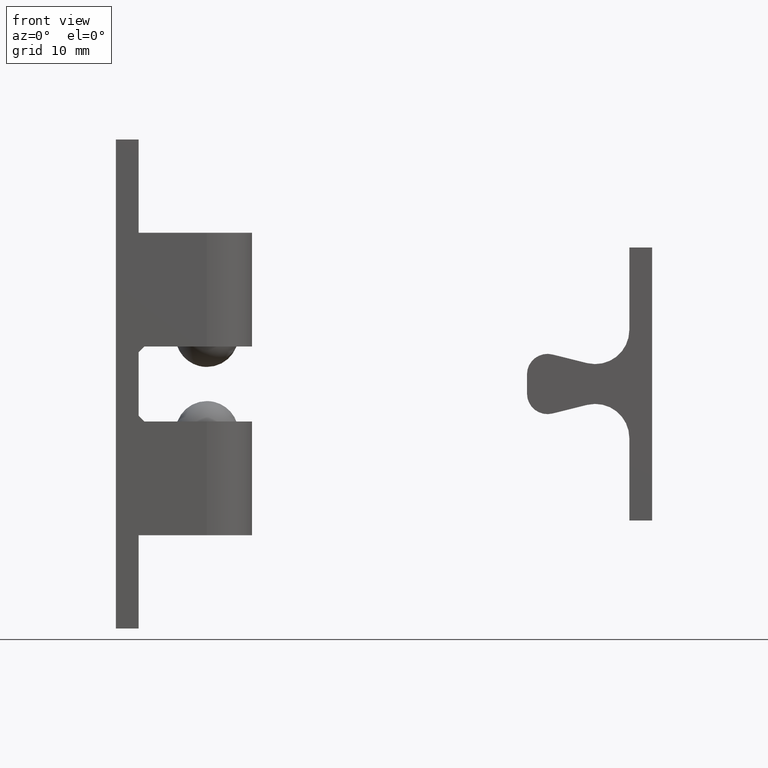
[diagram: clean part render]
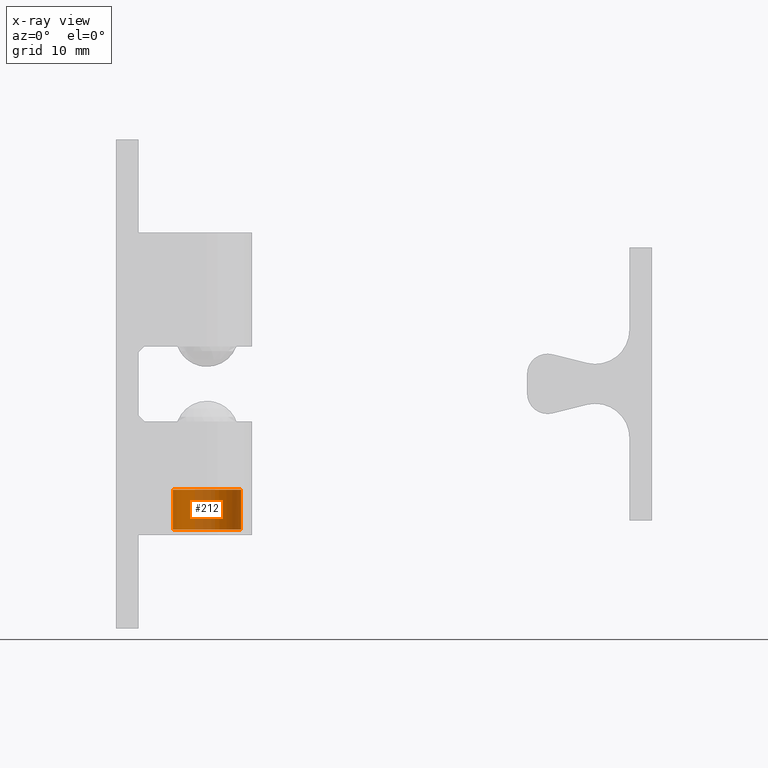
[diagram: x-ray — body ghosted, one internal face saturated and labeled with its STEP entity id]
A machine part, front view, then the same camera in x-ray: the body is ghosted and one INTERNAL B-rep face — a face not visible from any outside direction — is saturated and labeled: STEP entity #212.
In plain terms, the highlighted cylindrical surface (edge-blend (fillet) strip) has radius 3 mm, axis along (0, 0, -1).
Its self-contained STEP definition (entity closure, byte-faithful):
#212=ADVANCED_FACE('',(#355),#354,.T.);
#354=CYLINDRICAL_SURFACE('',#1031,3.00000000000E+00);
#355=FACE_OUTER_BOUND('',#1032,.T.);
#1028=CARTESIAN_POINT('',(8.00000000000E+00,0.00000000000E+00,0.00000000000E+00));
#1029=DIRECTION('',(-0.00000000000E+00,-0.00000000000E+00,1.00000000000E+00));
#1030=DIRECTION('',(1.00000000000E+00,-0.00000000000E+00,-0.00000000000E+00));
#1031=AXIS2_PLACEMENT_3D('',#1028,#1029,#1030);
#1032=EDGE_LOOP('',(#1420,#1421,#1422,#1423,#1424,#1425));
#1420=ORIENTED_EDGE('',*,*,#1738,.T.);
#1421=ORIENTED_EDGE('',*,*,#1742,.T.);
#1422=ORIENTED_EDGE('',*,*,#1736,.T.);
#1423=ORIENTED_EDGE('',*,*,#1746,.F.);
#1424=ORIENTED_EDGE('',*,*,#1740,.F.);
#1425=ORIENTED_EDGE('',*,*,#1747,.T.);
#1736=EDGE_CURVE('',#1913,#1920,#1927,.T.);
#1738=EDGE_CURVE('',#1941,#1933,#1942,.T.);
#1740=EDGE_CURVE('',#1954,#1955,#1956,.T.);
#1742=EDGE_CURVE('',#1933,#1913,#1968,.T.);
#1746=EDGE_CURVE('',#1955,#1920,#1992,.T.);
#1747=EDGE_CURVE('',#1954,#1941,#1998,.T.);
#1913=VERTEX_POINT('',#3012);
#1920=VERTEX_POINT('',#3017);
#1927=CIRCLE('',#3025,3.00000000000E+00);
#1933=VERTEX_POINT('',#3026);
#1941=VERTEX_POINT('',#3032);
#1942=CIRCLE('',#3036,3.00000000000E+00);
#1954=VERTEX_POINT('',#3041);
#1955=VERTEX_POINT('',#3042);
#1956=CIRCLE('',#3046,3.00000000000E+00);
#1968=CIRCLE('',#3054,3.00000000000E+00);
#1992=(BOUNDED_CURVE() B_SPLINE_CURVE(1,(#3065,#3066),.UNSPECIFIED.,.F.,.F.) B_SPLINE_CURVE_WITH_KNOTS((2,2),(8.33333358172E-02,9.16666664408E-01),.UNSPECIFIED.) CURVE() GEOMETRIC_REPRESENTATION_ITEM() RATIONAL_B_SPLINE_CURVE((1.00000000000E+00,1.00000000000E+00)) REPRESENTATION_ITEM('') );
#1998=(BOUNDED_CURVE() B_SPLINE_CURVE(1,(#3067,#3068),.UNSPECIFIED.,.F.,.F.) B_SPLINE_CURVE_WITH_KNOTS((2,2),(8.33333333333E-02,9.16666666667E-01),.UNSPECIFIED.) CURVE() GEOMETRIC_REPRESENTATION_ITEM() RATIONAL_B_SPLINE_CURVE((7.50000000000E-01,7.50000000000E-01)) REPRESENTATION_ITEM('') );
#3012=CARTESIAN_POINT('',(6.26236696589E+00,2.44553295597E+00,1.28000000000E+01));
#3017=CARTESIAN_POINT('',(1.10000000000E+01,1.34434368415E-09,1.28000000000E+01));
#3022=CARTESIAN_POINT('',(8.00000000000E+00,0.00000000000E+00,1.28000000000E+01));
#3023=DIRECTION('',(0.00000000000E+00,0.00000000000E+00,-1.00000000000E+00));
#3024=DIRECTION('',(-5.79211011371E-01,8.15177651992E-01,0.00000000000E+00));
#3025=AXIS2_PLACEMENT_3D('',#3022,#3023,#3024);
#3026=CARTESIAN_POINT('',(5.55517332125E+00,1.73862661628E+00,1.28000000000E+01));
#3032=CARTESIAN_POINT('',(5.00000000085E+00,-7.13303877145E-05,1.28000000000E+01));
#3033=CARTESIAN_POINT('',(8.00000000000E+00,0.00000000000E+00,1.28000000000E+01));
#3034=DIRECTION('',(0.00000000000E+00,0.00000000000E+00,-1.00000000000E+00));
#3035=DIRECTION('',(1.00000000000E+00,-0.00000000000E+00,-0.00000000000E+00));
#3036=AXIS2_PLACEMENT_3D('',#3033,#3034,#3035);
#3041=CARTESIAN_POINT('',(5.00000000000E+00,0.00000000000E+00,9.30000000000E+00));
#3042=CARTESIAN_POINT('',(1.10000000000E+01,-1.48029736617E-16,9.30000000000E+00));
#3043=CARTESIAN_POINT('',(8.00000000000E+00,0.00000000000E+00,9.30000000000E+00));
#3044=DIRECTION('',(-0.00000000000E+00,0.00000000000E+00,-1.00000000000E+00));
#3045=DIRECTION('',(-1.00000000000E+00,-1.22460635382E-16,0.00000000000E+00));
#3046=AXIS2_PLACEMENT_3D('',#3043,#3044,#3045);
#3051=CARTESIAN_POINT('',(8.00000000000E+00,0.00000000000E+00,1.28000000000E+01));
#3052=DIRECTION('',(0.00000000000E+00,0.00000000000E+00,-1.00000000000E+00));
#3053=DIRECTION('',(1.00000000000E+00,-0.00000000000E+00,-0.00000000000E+00));
#3054=AXIS2_PLACEMENT_3D('',#3051,#3052,#3053);
#3065=CARTESIAN_POINT('',(1.10000000000E+01,0.00000000000E+00,9.30000001043E+00));
#3066=CARTESIAN_POINT('',(1.10000000000E+01,0.00000000000E+00,1.27999999905E+01));
#3067=CARTESIAN_POINT('',(5.00000000000E+00,-1.48029736617E-16,9.30000000000E+00));
#3068=CARTESIAN_POINT('',(5.00000000000E+00,-1.48029736617E-16,1.28000000000E+01));